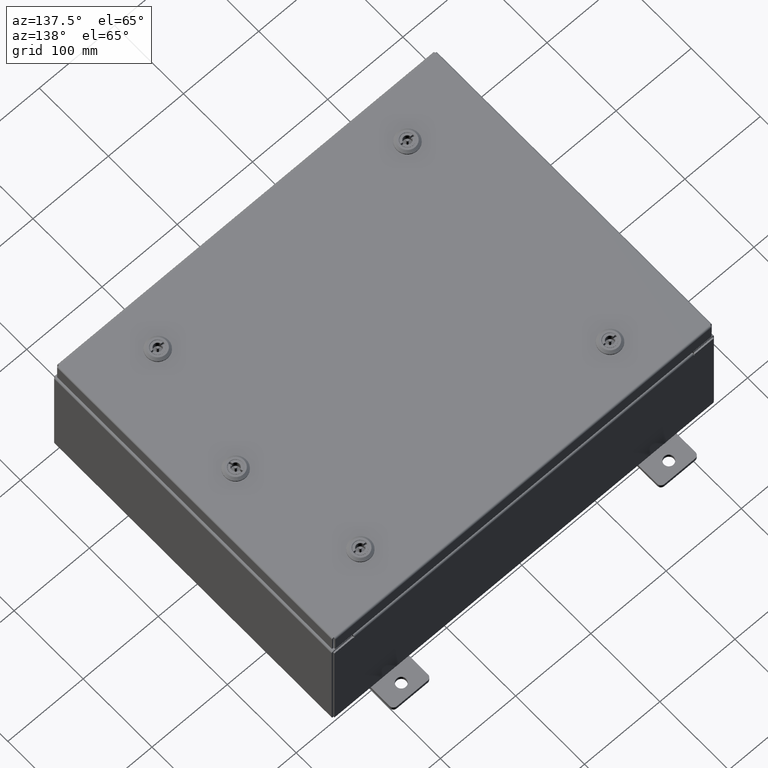
[diagram: clean part render]
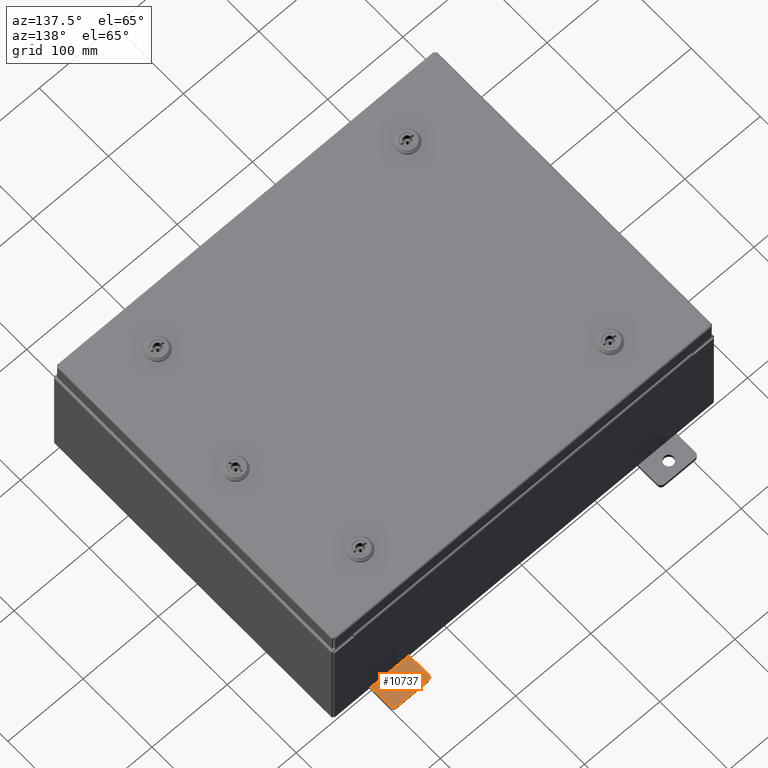
[diagram: same view with one face highlighted and labeled with its STEP entity id]
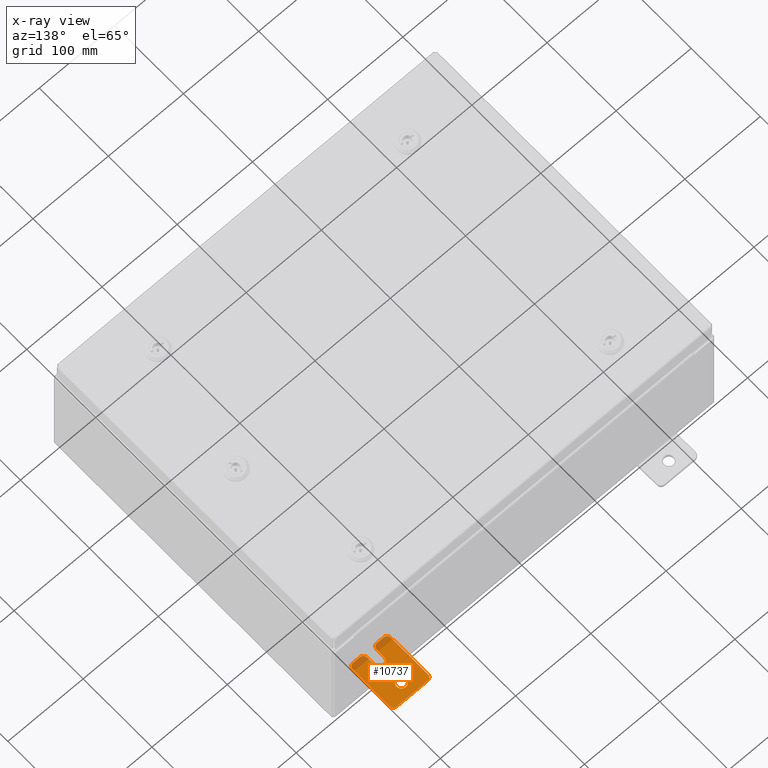
[diagram: x-ray of the same camera — body ghosted, the highlighted face saturated]
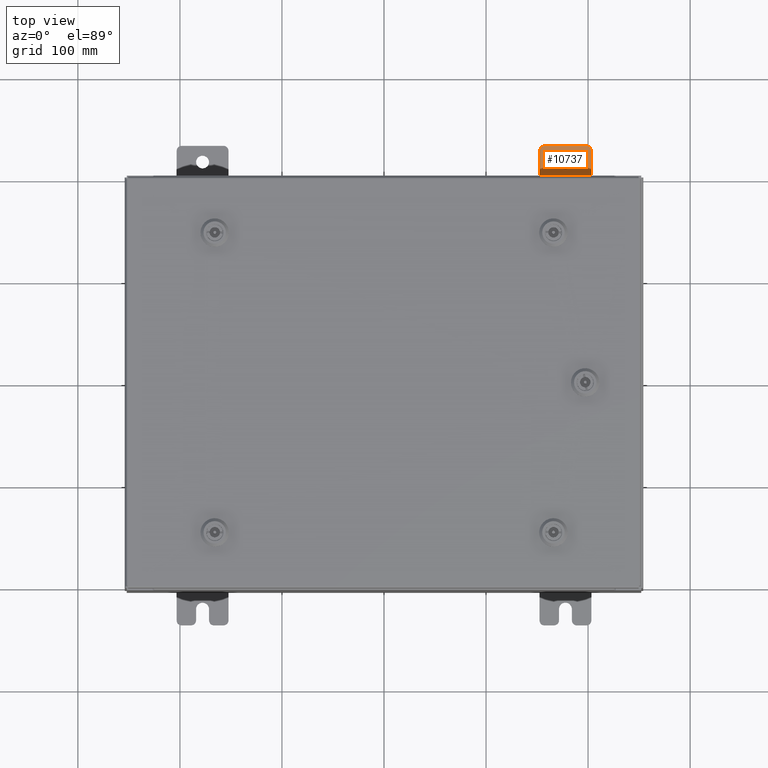
[diagram: same view with one face highlighted and labeled with its STEP entity id]
A machine part, auxiliary view. The second image highlights one B-rep face of the part: STEP entity #10737.
The next image is the same camera in x-ray: the body ghosted, the highlighted face saturated — about 9% of this face is hidden behind the body in this view.
A second angle (top view) of the same face is appended — the face is thin or edge-on in the first view.
In plain terms, the highlighted planar face has unit normal (0, 0, 1).
Its self-contained STEP definition (entity closure, byte-faithful):
#763 = CARTESIAN_POINT ( 'NONE',  ( 4.039428427013647300E-016, 0.6249999999999992200, -9.783840404509077400E-018 ) ) ;
#1745 = DIRECTION ( 'NONE',  ( 0.0000000000000000000, 1.000000000000000000, -1.639108796198558100E-015 ) ) ;
#3100 = EDGE_CURVE ( 'NONE', #38387, #48057, #25921, .T. ) ;
#3689 = DIRECTION ( 'NONE',  ( 0.0000000000000000000, -1.639108796198553600E-015, -1.000000000000000000 ) ) ;
#4731 = EDGE_CURVE ( 'NONE', #47429, #50223, #38005, .T. ) ;
#5320 = LINE ( 'NONE', #8371, #39532 ) ;
#5636 = DIRECTION ( 'NONE',  ( -5.163192708025533800E-017, 0.0000000000000000000, -1.000000000000000000 ) ) ;
#6221 = ORIENTED_EDGE ( 'NONE', *, *, #3100, .T. ) ;
#6355 = VERTEX_POINT ( 'NONE', #52343 ) ;
#6917 = ORIENTED_EDGE ( 'NONE', *, *, #47036, .T. ) ;
#6919 = DIRECTION ( 'NONE',  ( 1.000000000000000000, 0.0000000000000000000, -0.0000000000000000000 ) ) ;
#7119 = VERTEX_POINT ( 'NONE', #57879 ) ;
#7862 = CARTESIAN_POINT ( 'NONE',  ( 0.0000000000000000000, -1.250000000000002400, 0.8099999999999980500 ) ) ;
#8371 = CARTESIAN_POINT ( 'NONE',  ( 0.0000000000000000000, -1.250000000000002200, 0.9999999999999992200 ) ) ;
#8900 = CARTESIAN_POINT ( 'NONE',  ( 0.0000000000000000000, -1.250000000000003100, 0.4400000000000020000 ) ) ;
#9165 = AXIS2_PLACEMENT_3D ( 'NONE', #763, #34721, #5636 ) ;
#10737 = ADVANCED_FACE ( 'NONE', ( #50609, #39185 ), #23871, .T. ) ;
#10807 = VECTOR ( 'NONE', #29937, 39.37007874015748100 ) ;
#11071 = VERTEX_POINT ( 'NONE', #16458 ) ;
#11522 = VECTOR ( 'NONE', #57674, 39.37007874015748100 ) ;
#13084 = DIRECTION ( 'NONE',  ( 0.0000000000000000000, -1.000000000000000000, 1.639108796198558100E-015 ) ) ;
#14505 = EDGE_CURVE ( 'NONE', #53014, #39228, #60172, .T. ) ;
#15900 = EDGE_CURVE ( 'NONE', #48057, #40840, #5320, .T. ) ;
#16197 = CARTESIAN_POINT ( 'NONE',  ( 0.0000000000000000000, -1.250000000000005600, -1.000000000000006200 ) ) ;
#16458 = CARTESIAN_POINT ( 'NONE',  ( 3.910348609313009100E-016, 0.6249999999999992200, -0.2499999999999999200 ) ) ;
#17295 = DIRECTION ( 'NONE',  ( 1.000000000000000000, 0.0000000000000000000, -0.0000000000000000000 ) ) ;
#17942 = AXIS2_PLACEMENT_3D ( 'NONE', #18905, #52928, #23742 ) ;
#17987 = DIRECTION ( 'NONE',  ( 1.000000000000000000, -0.0000000000000000000, -5.163192708025532000E-017 ) ) ;
#18218 = EDGE_CURVE ( 'NONE', #50223, #31025, #44741, .T. ) ;
#18905 = CARTESIAN_POINT ( 'NONE',  ( 4.780733988912460100E-016, -0.6249999999999993300, 5.858939755051854500E-017 ) ) ;
#19196 = CARTESIAN_POINT ( 'NONE',  ( 0.0000000000000000000, -1.060000000000004100, -0.8100000000000050500 ) ) ;
#20162 = VERTEX_POINT ( 'NONE', #8900 ) ;
#20483 = AXIS2_PLACEMENT_3D ( 'NONE', #28375, #57960, #28795 ) ;
#22449 = CARTESIAN_POINT ( 'NONE',  ( 1.928684683526964400E-016, -1.060000000000003400, -0.2499999999999994400 ) ) ;
#22672 = EDGE_CURVE ( 'NONE', #31025, #20162, #49142, .T. ) ;
#22998 = AXIS2_PLACEMENT_3D ( 'NONE', #36008, #6919, #40902 ) ;
#23742 = DIRECTION ( 'NONE',  ( -6.523827964459551700E-016, -1.000000000000000000, 0.0000000000000000000 ) ) ;
#23871 = PLANE ( 'NONE',  #20483 ) ;
#24033 = DIRECTION ( 'NONE',  ( 0.0000000000000000000, 0.0000000000000000000, -1.000000000000000000 ) ) ;
#24051 = AXIS2_PLACEMENT_3D ( 'NONE', #47123, #17987, #52022 ) ;
#24279 = EDGE_LOOP ( 'NONE', ( #44605, #37605, #51244, #32606, #55941, #35715, #42974, #6221, #59718, #38188, #6917, #25037, #39057, #44675 ) ) ;
#25037 = ORIENTED_EDGE ( 'NONE', *, *, #49908, .T. ) ;
#25915 = CARTESIAN_POINT ( 'NONE',  ( 0.0000000000000000000, -1.060000000000001600, 0.8099999999999978300 ) ) ;
#25921 = CIRCLE ( 'NONE', #44844, 0.1900000000000011100 ) ;
#26083 = VERTEX_POINT ( 'NONE', #51947 ) ;
#26246 = CARTESIAN_POINT ( 'NONE',  ( 0.0000000000000000000, -1.060000000000002100, 0.4400000000000016700 ) ) ;
#27097 = AXIS2_PLACEMENT_3D ( 'NONE', #46445, #17295, #51332 ) ;
#28300 = DIRECTION ( 'NONE',  ( 1.000000000000000000, 0.0000000000000000000, -0.0000000000000000000 ) ) ;
#28375 = CARTESIAN_POINT ( 'NONE',  ( 0.0000000000000000000, 0.0000000000000000000, 0.0000000000000000000 ) ) ;
#28523 = DIRECTION ( 'NONE',  ( 0.0000000000000000000, 1.639108796198553600E-015, 1.000000000000000000 ) ) ;
#28770 = DIRECTION ( 'NONE',  ( 0.0000000000000000000, -1.639108796198553600E-015, -1.000000000000000000 ) ) ;
#28795 = DIRECTION ( 'NONE',  ( -0.0000000000000000000, 0.0000000000000000000, -1.000000000000000000 ) ) ;
#29937 = DIRECTION ( 'NONE',  ( 6.556435184794182400E-016, 1.000000000000000000, 0.0000000000000000000 ) ) ;
#30390 = CARTESIAN_POINT ( 'NONE',  ( 0.0000000000000000000, 1.249999999999994700, -0.8100000000000092700 ) ) ;
#30821 = DIRECTION ( 'NONE',  ( 0.0000000000000000000, 0.0000000000000000000, -1.000000000000000000 ) ) ;
#31025 = VERTEX_POINT ( 'NONE', #7862 ) ;
#31145 = EDGE_CURVE ( 'NONE', #7119, #38507, #60733, .T. ) ;
#31159 = DIRECTION ( 'NONE',  ( 0.0000000000000000000, 0.0000000000000000000, -1.000000000000000000 ) ) ;
#31239 = VECTOR ( 'NONE', #1745, 39.37007874015748100 ) ;
#31706 = CIRCLE ( 'NONE', #24051, 0.2499999999999999200 ) ;
#32352 = EDGE_CURVE ( 'NONE', #26083, #11071, #31706, .T. ) ;
#32400 = CARTESIAN_POINT ( 'NONE',  ( 0.0000000000000000000, 1.249999999999997600, 0.9999999999999951200 ) ) ;
#32606 = ORIENTED_EDGE ( 'NONE', *, *, #39392, .T. ) ;
#32769 = LINE ( 'NONE', #16197, #31239 ) ;
#32841 = AXIS2_PLACEMENT_3D ( 'NONE', #26246, #60319, #31159 ) ;
#33607 = LINE ( 'NONE', #59098, #10807 ) ;
#34648 = VECTOR ( 'NONE', #28770, 39.37007874015748100 ) ;
#34721 = DIRECTION ( 'NONE',  ( 1.000000000000000000, -0.0000000000000000000, -5.163192708025532000E-017 ) ) ;
#35715 = ORIENTED_EDGE ( 'NONE', *, *, #31145, .T. ) ;
#35789 = VECTOR ( 'NONE', #28523, 39.37007874015748100 ) ;
#36008 = CARTESIAN_POINT ( 'NONE',  ( 0.0000000000000000000, 1.059999999999996300, 0.8099999999999938400 ) ) ;
#36154 = CIRCLE ( 'NONE', #32841, 0.1900000000000011400 ) ;
#37326 = CIRCLE ( 'NONE', #47818, 0.1900000000000011100 ) ;
#37605 = ORIENTED_EDGE ( 'NONE', *, *, #18218, .T. ) ;
#38005 = LINE ( 'NONE', #32400, #62399 ) ;
#38188 = ORIENTED_EDGE ( 'NONE', *, *, #46795, .T. ) ;
#38387 = VERTEX_POINT ( 'NONE', #22449 ) ;
#38420 = CARTESIAN_POINT ( 'NONE',  ( 0.0000000000000000000, 1.059999999999996500, 0.9999999999999953400 ) ) ;
#38507 = VERTEX_POINT ( 'NONE', #57380 ) ;
#39057 = ORIENTED_EDGE ( 'NONE', *, *, #14505, .T. ) ;
#39185 = FACE_OUTER_BOUND ( 'NONE', #24279, .T. ) ;
#39210 = CARTESIAN_POINT ( 'NONE',  ( 0.0000000000000000000, -1.250000000000005300, -0.8100000000000047200 ) ) ;
#39228 = VERTEX_POINT ( 'NONE', #44804 ) ;
#39392 = EDGE_CURVE ( 'NONE', #20162, #56420, #36154, .T. ) ;
#39532 = VECTOR ( 'NONE', #3689, 39.37007874015748100 ) ;
#40326 = ORIENTED_EDGE ( 'NONE', *, *, #48391, .F. ) ;
#40840 = VERTEX_POINT ( 'NONE', #39210 ) ;
#40902 = DIRECTION ( 'NONE',  ( 0.0000000000000000000, 0.0000000000000000000, -1.000000000000000000 ) ) ;
#41995 = CARTESIAN_POINT ( 'NONE',  ( 0.0000000000000000000, -1.250000000000004700, -0.4400000000000002200 ) ) ;
#42404 = CIRCLE ( 'NONE', #22998, 0.1900000000000011100 ) ;
#42974 = ORIENTED_EDGE ( 'NONE', *, *, #44498, .T. ) ;
#42990 = CARTESIAN_POINT ( 'NONE',  ( 4.780733988912460100E-016, -0.6249999999999993300, -0.2499999999999993900 ) ) ;
#44308 = CARTESIAN_POINT ( 'NONE',  ( 0.0000000000000000000, -1.060000000000001200, 0.9999999999999988900 ) ) ;
#44498 = EDGE_CURVE ( 'NONE', #38507, #38387, #47291, .T. ) ;
#44605 = ORIENTED_EDGE ( 'NONE', *, *, #4731, .T. ) ;
#44675 = ORIENTED_EDGE ( 'NONE', *, *, #61982, .T. ) ;
#44741 = CIRCLE ( 'NONE', #48444, 0.1900000000000011100 ) ;
#44804 = CARTESIAN_POINT ( 'NONE',  ( 0.0000000000000000000, 1.249999999999997300, 0.8099999999999935000 ) ) ;
#44844 = AXIS2_PLACEMENT_3D ( 'NONE', #57457, #28300, #62350 ) ;
#44865 = CIRCLE ( 'NONE', #9165, 0.2499999999999999200 ) ;
#46445 = CARTESIAN_POINT ( 'NONE',  ( 0.0000000000000000000, 1.059999999999993600, -0.8100000000000089400 ) ) ;
#46795 = EDGE_CURVE ( 'NONE', #40840, #6355, #37326, .T. ) ;
#47036 = EDGE_CURVE ( 'NONE', #6355, #51769, #32769, .T. ) ;
#47123 = CARTESIAN_POINT ( 'NONE',  ( 4.039428427013647300E-016, 0.6249999999999992200, -9.783840404509077400E-018 ) ) ;
#47291 = LINE ( 'NONE', #42990, #11522 ) ;
#47429 = VERTEX_POINT ( 'NONE', #38420 ) ;
#47818 = AXIS2_PLACEMENT_3D ( 'NONE', #19196, #53219, #24033 ) ;
#48057 = VERTEX_POINT ( 'NONE', #41995 ) ;
#48391 = EDGE_CURVE ( 'NONE', #11071, #26083, #44865, .T. ) ;
#48444 = AXIS2_PLACEMENT_3D ( 'NONE', #25915, #59982, #30821 ) ;
#48592 = CIRCLE ( 'NONE', #27097, 0.1900000000000011100 ) ;
#49142 = LINE ( 'NONE', #57721, #34648 ) ;
#49706 = ORIENTED_EDGE ( 'NONE', *, *, #32352, .F. ) ;
#49908 = EDGE_CURVE ( 'NONE', #51769, #53014, #48592, .T. ) ;
#50223 = VERTEX_POINT ( 'NONE', #44308 ) ;
#50609 = FACE_BOUND ( 'NONE', #60658, .T. ) ;
#51244 = ORIENTED_EDGE ( 'NONE', *, *, #22672, .T. ) ;
#51332 = DIRECTION ( 'NONE',  ( 0.0000000000000000000, 0.0000000000000000000, -1.000000000000000000 ) ) ;
#51769 = VERTEX_POINT ( 'NONE', #61455 ) ;
#51947 = CARTESIAN_POINT ( 'NONE',  ( 4.168508244714285900E-016, 0.6249999999999992200, 0.2499999999999999200 ) ) ;
#52022 = DIRECTION ( 'NONE',  ( -5.163192708025533800E-017, 0.0000000000000000000, -1.000000000000000000 ) ) ;
#52343 = CARTESIAN_POINT ( 'NONE',  ( 0.0000000000000000000, -1.060000000000004500, -1.000000000000006400 ) ) ;
#52928 = DIRECTION ( 'NONE',  ( -1.000000000000000000, 6.523827964459549700E-016, 5.163192708025532000E-017 ) ) ;
#53014 = VERTEX_POINT ( 'NONE', #30390 ) ;
#53219 = DIRECTION ( 'NONE',  ( 1.000000000000000000, 0.0000000000000000000, -0.0000000000000000000 ) ) ;
#55941 = ORIENTED_EDGE ( 'NONE', *, *, #56414, .T. ) ;
#56414 = EDGE_CURVE ( 'NONE', #56420, #7119, #33607, .T. ) ;
#56420 = VERTEX_POINT ( 'NONE', #62784 ) ;
#57380 = CARTESIAN_POINT ( 'NONE',  ( 4.780733988912460100E-016, -0.6249999999999993300, -0.2499999999999998600 ) ) ;
#57457 = CARTESIAN_POINT ( 'NONE',  ( 0.0000000000000000000, -1.060000000000003400, -0.4400000000000005000 ) ) ;
#57674 = DIRECTION ( 'NONE',  ( -6.556435184794182400E-016, -1.000000000000000000, -1.639108796198545600E-016 ) ) ;
#57683 = CARTESIAN_POINT ( 'NONE',  ( 0.0000000000000000000, 1.249999999999994200, -1.000000000000010400 ) ) ;
#57721 = CARTESIAN_POINT ( 'NONE',  ( 0.0000000000000000000, -1.250000000000002200, 0.9999999999999992200 ) ) ;
#57879 = CARTESIAN_POINT ( 'NONE',  ( 0.0000000000000000000, -0.6249999999999992200, 0.2500000000000005000 ) ) ;
#57960 = DIRECTION ( 'NONE',  ( 1.000000000000000000, 0.0000000000000000000, -0.0000000000000000000 ) ) ;
#59098 = CARTESIAN_POINT ( 'NONE',  ( 6.829619984160658000E-017, -1.250000000000003800, 0.2500000000000005000 ) ) ;
#59718 = ORIENTED_EDGE ( 'NONE', *, *, #15900, .T. ) ;
#59982 = DIRECTION ( 'NONE',  ( 1.000000000000000000, 0.0000000000000000000, -0.0000000000000000000 ) ) ;
#60172 = LINE ( 'NONE', #57683, #35789 ) ;
#60319 = DIRECTION ( 'NONE',  ( 1.000000000000000000, 0.0000000000000000000, -0.0000000000000000000 ) ) ;
#60658 = EDGE_LOOP ( 'NONE', ( #40326, #49706 ) ) ;
#60733 = CIRCLE ( 'NONE', #17942, 0.2499999999999999200 ) ;
#61455 = CARTESIAN_POINT ( 'NONE',  ( 0.0000000000000000000, 1.059999999999993400, -1.000000000000010000 ) ) ;
#61982 = EDGE_CURVE ( 'NONE', #39228, #47429, #42404, .T. ) ;
#62350 = DIRECTION ( 'NONE',  ( 0.0000000000000000000, 0.0000000000000000000, -1.000000000000000000 ) ) ;
#62399 = VECTOR ( 'NONE', #13084, 39.37007874015748100 ) ;
#62784 = CARTESIAN_POINT ( 'NONE',  ( 1.928684683526972300E-016, -1.060000000000002100, 0.2500000000000005000 ) ) ;